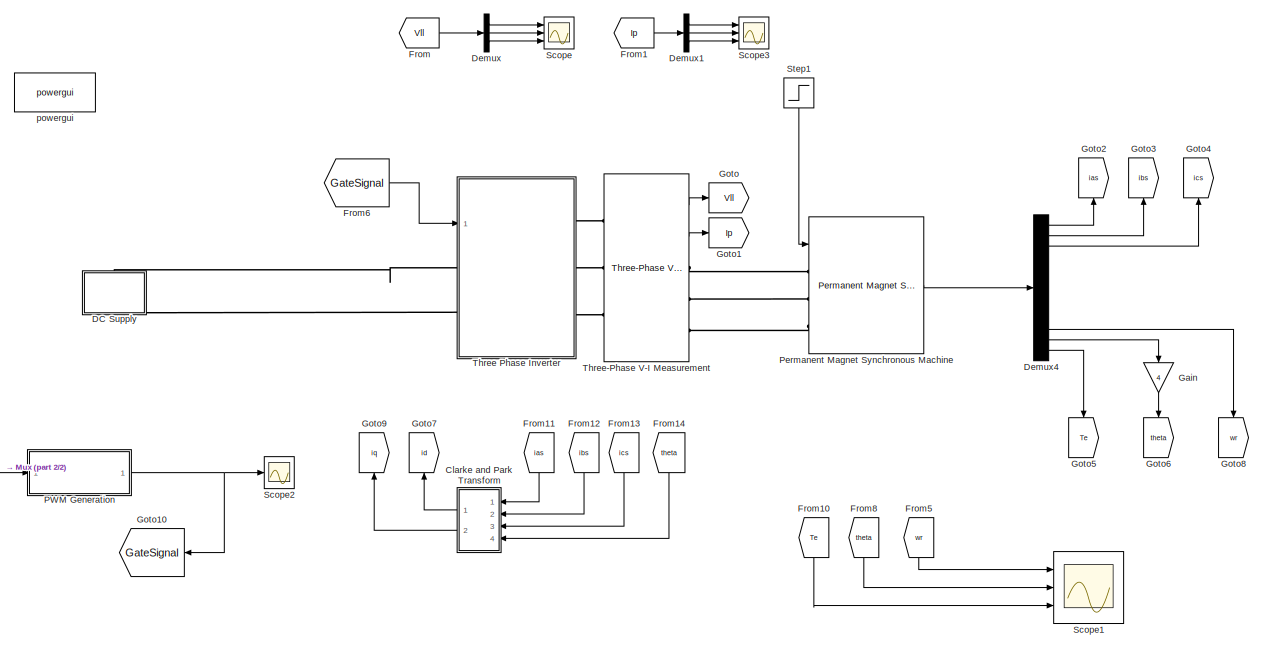
[diagram: root canvas - part 1/2, full width, top band]
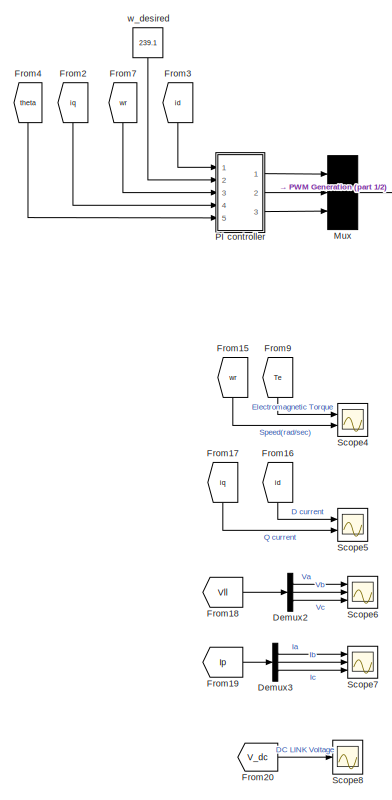
[diagram: root canvas - part 2/2, middle left region]
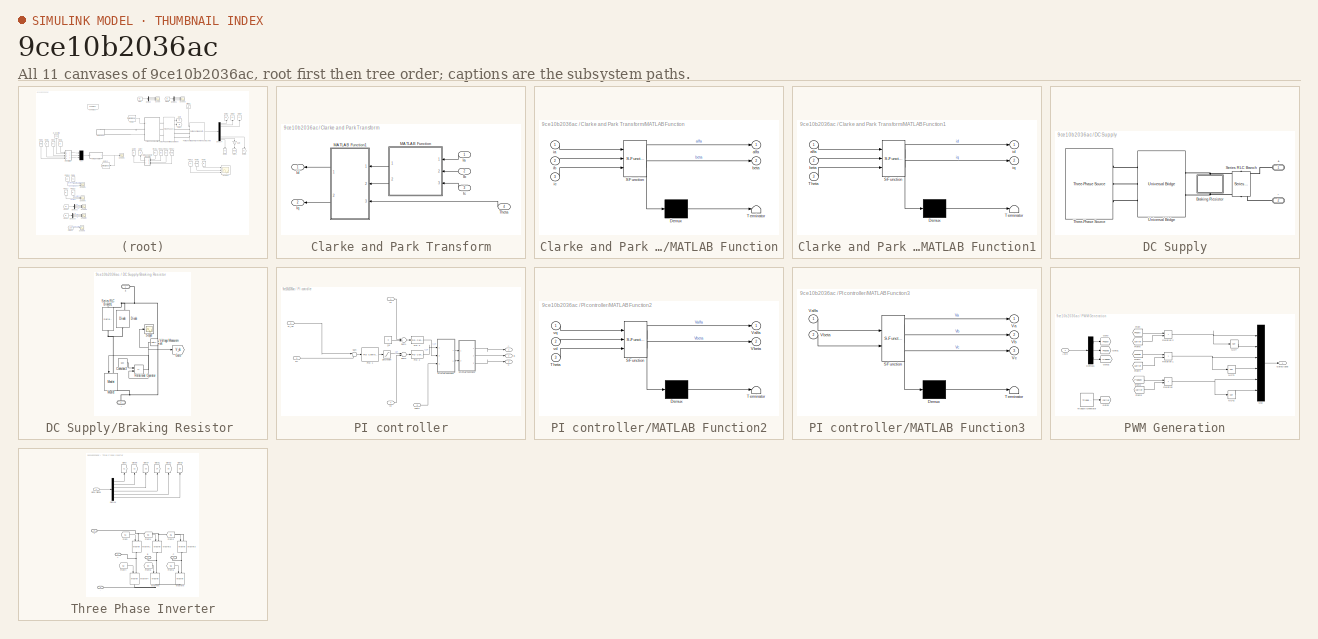
[diagram: thumbnail index - all 11 canvases of the model, root first then tree order]
MODEL slx_9ce10b2036ac
KIND model
CONFIG AbsTol = auto
CONFIG EnableMultiTasking = off
CONFIG FixedStep = auto
CONFIG MaxStep = auto
CONFIG MinStep = auto
CONFIG RelTol = 1e-3
CONFIG SampleTimeConstraint = Unconstrained
CONFIG Solver = VariableStepDiscrete
CONFIG SolverName = VariableStepDiscrete
CONFIG StartTime = 0.0
CONFIG StopTime = 10.0
BLOCK [SubSystem] Clarke and Park Transform
  Ports = [4, 2]
  RequestExecContextInheritance = off
BLOCK [Inport] Clarke and Park Transform/Ia
  IconDisplay = Port number
BLOCK [Inport] Clarke and Park Transform/Ib
  IconDisplay = Port number
  Port = 2
BLOCK [Inport] Clarke and Park Transform/Ic
  IconDisplay = Port number
  Port = 3
BLOCK [Outport] Clarke and Park Transform/Id
  IconDisplay = Port number
BLOCK [Outport] Clarke and Park Transform/Iq
  IconDisplay = Port number
  Port = 2
BLOCK [SubSystem] Clarke and Park Transform/MATLAB Function
  ErrorFcn = Stateflow.Translate.translate
  PermitHierarchicalResolution = ExplicitOnly
  Ports = [3, 2]
  RequestExecContextInheritance = off
  SFBlockType = MATLAB Function
  TreatAsAtomicUnit = on
BLOCK [Demux] Clarke and Park Transform/MATLAB Function/ Demux 
  Outputs = 1
  Ports = [1, 1]
BLOCK [S-Function] Clarke and Park Transform/MATLAB Function/ SFunction 
  EnableBusSupport = on
  FunctionName = sf_sfun
  PortCounts = [3 3]
  Ports = [3, 3]
  SFcnIsStateOwnerBlock = off
  SFunctionDeploymentMode = off
  Tag = Stateflow S-Function FinalFinal 2
BLOCK [Terminator] Clarke and Park Transform/MATLAB Function/ Terminator 
BLOCK [Outport] Clarke and Park Transform/MATLAB Function/alfa
  IconDisplay = Port number
BLOCK [Outport] Clarke and Park Transform/MATLAB Function/beta
  IconDisplay = Port number
  Port = 2
BLOCK [Inport] Clarke and Park Transform/MATLAB Function/ia
  IconDisplay = Port number
BLOCK [Inport] Clarke and Park Transform/MATLAB Function/ib
  IconDisplay = Port number
  Port = 2
BLOCK [Inport] Clarke and Park Transform/MATLAB Function/ic
  IconDisplay = Port number
  Port = 3
BLOCK [SubSystem] Clarke and Park Transform/MATLAB Function1
  ErrorFcn = Stateflow.Translate.translate
  PermitHierarchicalResolution = ExplicitOnly
  Ports = [3, 2]
  RequestExecContextInheritance = off
  SFBlockType = MATLAB Function
  TreatAsAtomicUnit = on
BLOCK [Demux] Clarke and Park Transform/MATLAB Function1/ Demux 
  Outputs = 1
  Ports = [1, 1]
BLOCK [S-Function] Clarke and Park Transform/MATLAB Function1/ SFunction 
  EnableBusSupport = on
  FunctionName = sf_sfun
  PortCounts = [3 3]
  Ports = [3, 3]
  SFcnIsStateOwnerBlock = off
  SFunctionDeploymentMode = off
  Tag = Stateflow S-Function FinalFinal 1
BLOCK [Terminator] Clarke and Park Transform/MATLAB Function1/ Terminator 
BLOCK [Inport] Clarke and Park Transform/MATLAB Function1/Theta
  IconDisplay = Port number
  Port = 3
BLOCK [Inport] Clarke and Park Transform/MATLAB Function1/alfa
  IconDisplay = Port number
BLOCK [Inport] Clarke and Park Transform/MATLAB Function1/beta
  IconDisplay = Port number
  Port = 2
BLOCK [Outport] Clarke and Park Transform/MATLAB Function1/id
  IconDisplay = Port number
BLOCK [Outport] Clarke and Park Transform/MATLAB Function1/iq
  IconDisplay = Port number
  Port = 2
BLOCK [Inport] Clarke and Park Transform/Theta
  IconDisplay = Port number
  Port = 4
BLOCK [SubSystem] DC Supply
  Ports = [0, 0, 0, 0, 0, 1, 1]
  RequestExecContextInheritance = off
BLOCK [PMIOPort] DC Supply/+
  Side = Right
BLOCK [PMIOPort] DC Supply/-
  Port = 2
  Side = Left
BLOCK [SubSystem] DC Supply/Braking Resistor 
  Commented = on
  Ports = [0, 0, 0, 0, 0, 1, 1]
  RequestExecContextInheritance = off
BLOCK [PMIOPort] DC Supply/Braking Resistor /+
  Side = Left
BLOCK [PMIOPort] DC Supply/Braking Resistor /-
  Port = 2
  Side = Right
BLOCK [Constant] DC Supply/Braking Resistor /Constant3
  Value = 600
BLOCK [Reference] DC Supply/Braking Resistor /Diode  REF=powerlib/Power
Electronics/Diode
  Ports = [0, 1, 0, 0, 0, 1, 1]
  SourceBlock = powerlib/Power\nElectronics/Diode
  SourceProductBaseCode = PS
  SourceProductName = Simscape Power Systems
  SourceType = Diode
BLOCK [Goto] DC Supply/Braking Resistor /Goto
  GotoTag = V_dc
  TagVisibility = global
BLOCK [Reference] DC Supply/Braking Resistor /Mosfet  REF=powerlib/Power
Electronics/Mosfet
  Ports = [1, 0, 0, 0, 0, 1, 1]
  SourceBlock = powerlib/Power\nElectronics/Mosfet
  SourceProductBaseCode = PS
  SourceProductName = Simscape Electrical
  SourceType = Mosfet
BLOCK [RelationalOperator] DC Supply/Braking Resistor /Relational Operator
  InputSameDT = off
  Operator = <=
  OutDataTypeStr = boolean
  Ports = [2, 1]
  RndMeth = Simplest
BLOCK [Scope] DC Supply/Braking Resistor /Scope
  Floating = off
  NumInputPorts = 1
  Ports = [1]
  ScopeSpecificationString = Simulink.scopes.TimeScopeBlockCfg('CurrentConfiguration', extmgr.ConfigurationSet(extmgr.Configuration('Core','General UI',true),extmgr.Configuration('Core','Source UI',true),extmgr.Configuration('Sources','WiredSimulink',true),extmgr.Configuration('Visuals','Time Domain',true),extmgr.Configuration('Tools','Plot Navigation',true),extmgr.Configuration('Tools','Measurements',true)),'Version','2018a'...<+1ch>
BLOCK [Reference] DC Supply/Braking Resistor /Series RLC Branch1  REF=powerlib/Elements/Series RLC Branch
  Ports = [0, 0, 0, 0, 0, 1, 1]
  SourceBlock = powerlib/Elements/Series RLC Branch
  SourceProductBaseCode = PS
  SourceProductName = Simscape Power Systems
  SourceType = Series RLC Branch
BLOCK [Reference] DC Supply/Braking Resistor /Voltage Measurement  REF=powerlib/Measurements/Voltage Measurement
  Ports = [0, 1, 0, 0, 0, 2]
  SourceBlock = powerlib/Measurements/Voltage Measurement
  SourceProductBaseCode = PS
  SourceProductName = Simscape Electrical
  SourceType = Voltage Measurement
  UserDataPersistent = on
BLOCK [Reference] DC Supply/Series RLC Branch  REF=powerlib/Elements/Series RLC Branch
  Ports = [0, 0, 0, 0, 0, 1, 1]
  SourceBlock = powerlib/Elements/Series RLC Branch
  SourceProductBaseCode = PS
  SourceProductName = Simscape Electrical
  SourceType = Series RLC Branch
BLOCK [Reference] DC Supply/Three-Phase Source   REF=powerlib/Electrical
Sources/Three-Phase Source
  Ports = [0, 0, 0, 0, 0, 0, 3]
  SourceBlock = powerlib/Electrical\nSources/Three-Phase Source
  SourceProductBaseCode = PS
  SourceProductName = Simscape Electrical
  SourceType = Three-Phase Source
BLOCK [Reference] DC Supply/Universal Bridge   REF=powerlib/Power
Electronics/Universal Bridge
  Ports = [0, 0, 0, 0, 0, 3, 2]
  SourceBlock = powerlib/Power\nElectronics/Universal Bridge
  SourceProductBaseCode = PS
  SourceProductName = Simscape Electrical
  SourceType = Universal Bridge
BLOCK [Demux] Demux
  DisplayOption = bar
  Outputs = 3
  Ports = [1, 3]
BLOCK [Demux] Demux1
  DisplayOption = bar
  Outputs = 3
  Ports = [1, 3]
BLOCK [Demux] Demux2
  DisplayOption = bar
  Outputs = 3
  Ports = [1, 3]
BLOCK [Demux] Demux3
  DisplayOption = bar
  Outputs = 3
  Ports = [1, 3]
BLOCK [Demux] Demux4
  DisplayOption = bar
  Outputs = 13
  Ports = [1, 13]
BLOCK [From] From
  GotoTag = Vll
BLOCK [From] From1
  GotoTag = Ip
BLOCK [From] From10
  GotoTag = Te
BLOCK [From] From11
  GotoTag = ias
BLOCK [From] From12
  GotoTag = ibs
BLOCK [From] From13
  GotoTag = ics
BLOCK [From] From14
  GotoTag = theta
BLOCK [From] From15
  GotoTag = wr
BLOCK [From] From16
  GotoTag = id
BLOCK [From] From17
  GotoTag = iq
BLOCK [From] From18
  GotoTag = Vll
BLOCK [From] From19
  GotoTag = Ip
BLOCK [From] From2
  GotoTag = iq
BLOCK [From] From20
  Commented = on
  GotoTag = V_dc
  TagVisibility = global
BLOCK [From] From3
  GotoTag = id
BLOCK [From] From4
  GotoTag = theta
BLOCK [From] From5
  GotoTag = wr
BLOCK [From] From6
  GotoTag = GateSignal
BLOCK [From] From7
  GotoTag = wr
BLOCK [From] From8
  GotoTag = theta
BLOCK [From] From9
  GotoTag = Te
BLOCK [Gain] Gain
  Gain = 4
  OutDataTypeStr = Inherit: Inherit via internal rule
  ParamDataTypeStr = Inherit: Inherit via internal rule
  SaturateOnIntegerOverflow = off
BLOCK [Goto] Goto
  GotoTag = Vll
BLOCK [Goto] Goto1
  GotoTag = Ip
BLOCK [Goto] Goto10
  GotoTag = GateSignal
BLOCK [Goto] Goto2
  GotoTag = ias
BLOCK [Goto] Goto3
  GotoTag = ibs
BLOCK [Goto] Goto4
  GotoTag = ics
BLOCK [Goto] Goto5
  GotoTag = Te
BLOCK [Goto] Goto6
  GotoTag = theta
BLOCK [Goto] Goto7
  GotoTag = id
BLOCK [Goto] Goto8
  GotoTag = wr
BLOCK [Goto] Goto9
  GotoTag = iq
BLOCK [Mux] Mux
  DisplayOption = bar
  Inputs = 3
  Ports = [3, 1]
BLOCK [SubSystem] PI controller
  Ports = [5, 3]
  RequestExecContextInheritance = off
BLOCK [Outport] PI controller/A
  IconDisplay = Port number
BLOCK [Outport] PI controller/B
  IconDisplay = Port number
  Port = 2
BLOCK [Outport] PI controller/C
  IconDisplay = Port number
  Port = 3
BLOCK [Inport] PI controller/Id
  IconDisplay = Port number
BLOCK [Inport] PI controller/Iq
  IconDisplay = Port number
  Port = 4
BLOCK [SubSystem] PI controller/MATLAB Function2
  ErrorFcn = Stateflow.Translate.translate
  PermitHierarchicalResolution = ExplicitOnly
  Ports = [3, 2]
  RequestExecContextInheritance = off
  SFBlockType = MATLAB Function
  TreatAsAtomicUnit = on
BLOCK [Demux] PI controller/MATLAB Function2/ Demux 
  Outputs = 1
  Ports = [1, 1]
BLOCK [S-Function] PI controller/MATLAB Function2/ SFunction 
  EnableBusSupport = on
  FunctionName = sf_sfun
  PortCounts = [3 3]
  Ports = [3, 3]
  SFcnIsStateOwnerBlock = off
  SFunctionDeploymentMode = off
  Tag = Stateflow S-Function FinalFinal 3
BLOCK [Terminator] PI controller/MATLAB Function2/ Terminator 
BLOCK [Inport] PI controller/MATLAB Function2/Theta
  IconDisplay = Port number
  Port = 3
BLOCK [Outport] PI controller/MATLAB Function2/Valfa
  IconDisplay = Port number
BLOCK [Outport] PI controller/MATLAB Function2/Vbeta
  IconDisplay = Port number
  Port = 2
BLOCK [Inport] PI controller/MATLAB Function2/vd
  IconDisplay = Port number
  Port = 2
BLOCK [Inport] PI controller/MATLAB Function2/vq
  IconDisplay = Port number
BLOCK [SubSystem] PI controller/MATLAB Function3
  ErrorFcn = Stateflow.Translate.translate
  PermitHierarchicalResolution = ExplicitOnly
  Ports = [2, 3]
  RequestExecContextInheritance = off
  SFBlockType = MATLAB Function
  TreatAsAtomicUnit = on
BLOCK [Demux] PI controller/MATLAB Function3/ Demux 
  Outputs = 1
  Ports = [1, 1]
BLOCK [S-Function] PI controller/MATLAB Function3/ SFunction 
  EnableBusSupport = on
  FunctionName = sf_sfun
  PortCounts = [2 4]
  Ports = [2, 4]
  SFcnIsStateOwnerBlock = off
  SFunctionDeploymentMode = off
  Tag = Stateflow S-Function FinalFinal 4
BLOCK [Terminator] PI controller/MATLAB Function3/ Terminator 
BLOCK [Outport] PI controller/MATLAB Function3/Va
  IconDisplay = Port number
BLOCK [Inport] PI controller/MATLAB Function3/Valfa
  IconDisplay = Port number
BLOCK [Outport] PI controller/MATLAB Function3/Vb
  IconDisplay = Port number
  Port = 2
BLOCK [Inport] PI controller/MATLAB Function3/Vbeta
  IconDisplay = Port number
  Port = 2
BLOCK [Outport] PI controller/MATLAB Function3/Vc
  IconDisplay = Port number
  Port = 3
BLOCK [Reference] PI controller/PID 1  REF=simulink/Continuous/PID Controller
  Ports = [1, 1]
  SourceBlock = simulink/Continuous/PID Controller
  SourceProductBaseCode = SL
  SourceProductName = Simulink
  SourceType = PID 1dof
BLOCK [Reference] PI controller/PID 2  REF=simulink/Continuous/PID Controller
  Ports = [1, 1]
  SourceBlock = simulink/Continuous/PID Controller
  SourceProductBaseCode = SL
  SourceProductName = Simulink
  SourceType = PID 1dof
BLOCK [Reference] PI controller/PID 3  REF=simulink/Continuous/PID Controller
  Ports = [1, 1]
  SourceBlock = simulink/Continuous/PID Controller
  SourceProductBaseCode = SL
  SourceProductName = Simulink
  SourceType = PID 1dof
BLOCK [Saturate] PI controller/Saturation
  InputPortMap = u0
  LowerLimit = -250
  Ports = [1, 1]
  UpperLimit = 250
BLOCK [Sum] PI controller/Sum
  IconShape = round
  InputSameDT = off
  Inputs = |+-
  OutDataTypeStr = Inherit: Inherit via internal rule
  Ports = [2, 1]
  SaturateOnIntegerOverflow = off
BLOCK [Sum] PI controller/Sum1
  InputSameDT = off
  Inputs = -+|
  OutDataTypeStr = Inherit: Inherit via internal rule
  Ports = [2, 1]
  SaturateOnIntegerOverflow = off
BLOCK [Sum] PI controller/Sum2
  InputSameDT = off
  Inputs = |+-
  OutDataTypeStr = Inherit: Inherit via internal rule
  Ports = [2, 1]
  SaturateOnIntegerOverflow = off
BLOCK [Inport] PI controller/Theta
  IconDisplay = Port number
  Port = 5
BLOCK [Constant] PI controller/i_d*
  Value = 0
BLOCK [Inport] PI controller/w_ref
  IconDisplay = Port number
  Port = 2
BLOCK [Inport] PI controller/wr
  IconDisplay = Port number
  Port = 3
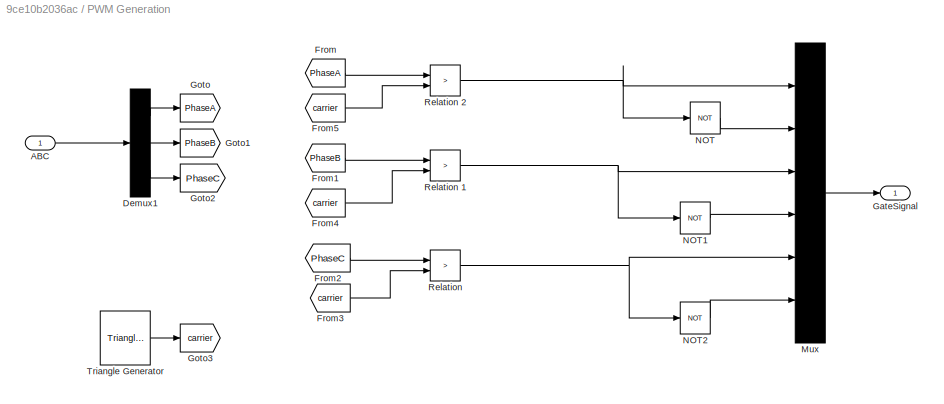
BLOCK [SubSystem] PWM Generation
  Ports = [1, 1]
  RequestExecContextInheritance = off
BLOCK [Inport] PWM Generation/ABC
  IconDisplay = Port number
BLOCK [Demux] PWM Generation/Demux1
  DisplayOption = bar
  Outputs = 3
  Ports = [1, 3]
BLOCK [From] PWM Generation/From
  GotoTag = PhaseA
BLOCK [From] PWM Generation/From1
  GotoTag = PhaseB
BLOCK [From] PWM Generation/From2
  GotoTag = PhaseC
BLOCK [From] PWM Generation/From3
  GotoTag = carrier
BLOCK [From] PWM Generation/From4
  GotoTag = carrier
BLOCK [From] PWM Generation/From5
  GotoTag = carrier
BLOCK [Outport] PWM Generation/GateSignal 
  IconDisplay = Port number
BLOCK [Goto] PWM Generation/Goto
  GotoTag = PhaseA
BLOCK [Goto] PWM Generation/Goto1
  GotoTag = PhaseB
BLOCK [Goto] PWM Generation/Goto2
  GotoTag = PhaseC
BLOCK [Goto] PWM Generation/Goto3
  GotoTag = carrier
BLOCK [Mux] PWM Generation/Mux
  DisplayOption = bar
  Inputs = 6
  Ports = [6, 1]
BLOCK [Logic] PWM Generation/NOT
  AllPortsSameDT = off
  IconShape = distinctive
  Operator = NOT
  OutDataTypeStr = boolean
  Ports = [1, 1]
BLOCK [Logic] PWM Generation/NOT1
  AllPortsSameDT = off
  IconShape = distinctive
  Operator = NOT
  OutDataTypeStr = boolean
  Ports = [1, 1]
BLOCK [Logic] PWM Generation/NOT2
  AllPortsSameDT = off
  IconShape = distinctive
  Operator = NOT
  OutDataTypeStr = boolean
  Ports = [1, 1]
BLOCK [RelationalOperator] PWM Generation/Relation 
  InputSameDT = off
  Operator = >
  OutDataTypeStr = boolean
  Ports = [2, 1]
  RndMeth = Simplest
BLOCK [RelationalOperator] PWM Generation/Relation 1
  InputSameDT = off
  Operator = >
  OutDataTypeStr = boolean
  Ports = [2, 1]
  RndMeth = Simplest
BLOCK [RelationalOperator] PWM Generation/Relation 2
  InputSameDT = off
  Operator = >
  OutDataTypeStr = boolean
  Ports = [2, 1]
  RndMeth = Simplest
BLOCK [Reference] PWM Generation/Triangle Generator  REF=powerlib_meascontrol/Pulse & Signal
Generators/Triangle
Generator
  Ports = [0, 1]
  SourceBlock = powerlib_meascontrol/Pulse & Signal\nGenerators/Triangle\nGenerator
  SourceProductBaseCode = PS
  SourceProductName = Simscape Power Systems
  SourceType = Triangle Generator
BLOCK [Reference] Permanent Magnet Synchronous Machine  REF=powerlib/Machines/Permanent Magnet
Synchronous Machine
  Ports = [1, 1, 0, 0, 0, 3]
  SourceBlock = powerlib/Machines/Permanent Magnet\nSynchronous Machine
  SourceProductBaseCode = PS
  SourceProductName = Simscape Electrical
  SourceType = Permanent Magnet Synchronous Machine
BLOCK [Scope] Scope
  Floating = off
  NumInputPorts = 3
  Ports = [3]
  ScopeSpecificationString = Simulink.scopes.TimeScopeBlockCfg('CurrentConfiguration', extmgr.ConfigurationSet(extmgr.Configuration('Core','General UI',true),extmgr.Configuration('Core','Source UI',true),extmgr.Configuration('Sources','WiredSimulink',true,'DataLoggingVariableName','ScopeData3'),extmgr.Configuration('Visuals','Time Domain',true),extmgr.Configuration('Tools','Plot Navigation',true),extmgr.Configuration('Tools',...<+40ch>
BLOCK [Scope] Scope1
  Floating = off
  NumInputPorts = 3
  Ports = [3]
  ScopeSpecificationString = Simulink.scopes.TimeScopeBlockCfg('CurrentConfiguration', extmgr.ConfigurationSet(extmgr.Configuration('Core','General UI',true),extmgr.Configuration('Core','Source UI',true),extmgr.Configuration('Sources','WiredSimulink',true,'DataLoggingVariableName','ScopeData1'),extmgr.Configuration('Visuals','Time Domain',true,'SerializedDisplays',{struct('MinYLimReal','107.11559','MaxYLimReal','283.65382','Y...<+2784ch>
BLOCK [Scope] Scope2
  Floating = off
  NumInputPorts = 1
  Ports = [1]
  ScopeSpecificationString = Simulink.scopes.TimeScopeBlockCfg('CurrentConfiguration', extmgr.ConfigurationSet(extmgr.Configuration('Core','General UI',true),extmgr.Configuration('Core','Source UI',true),extmgr.Configuration('Sources','WiredSimulink',true,'DataLoggingVariableName','ScopeData2'),extmgr.Configuration('Visuals','Time Domain',true,'SerializedDisplays',{struct('MinYLimReal','-0.05025','MaxYLimReal','1.00636','YLab...<+1708ch>
BLOCK [Scope] Scope3
  Floating = off
  NumInputPorts = 3
  Ports = [3]
  ScopeSpecificationString = Simulink.scopes.TimeScopeBlockCfg('CurrentConfiguration', extmgr.ConfigurationSet(extmgr.Configuration('Core','General UI',true),extmgr.Configuration('Core','Source UI',true),extmgr.Configuration('Sources','WiredSimulink',true,'DataLoggingVariableName','ScopeData6'),extmgr.Configuration('Visuals','Time Domain',true),extmgr.Configuration('Tools','Plot Navigation',true),extmgr.Configuration('Tools',...<+40ch>
BLOCK [Scope] Scope4
  Floating = off
  NumInputPorts = 2
  Ports = [2]
  ScopeSpecificationString = Simulink.scopes.TimeScopeBlockCfg('CurrentConfiguration', extmgr.ConfigurationSet(extmgr.Configuration('Core','General UI',true,'FigureColor',[0.831372549019608 0.815686274509804 0.784313725490196]),extmgr.Configuration('Core','Source UI',true),extmgr.Configuration('Sources','WiredSimulink',true,'DataLoggingVariableName','ScopeData4'),extmgr.Configuration('Visuals','Time Domain',true,'SerializedDi...<+3140ch>
BLOCK [Scope] Scope5
  Floating = off
  NumInputPorts = 2
  Ports = [2]
  ScopeSpecificationString = Simulink.scopes.TimeScopeBlockCfg('CurrentConfiguration', extmgr.ConfigurationSet(extmgr.Configuration('Core','General UI',true,'FigureColor',[0.831372549019608 0.815686274509804 0.784313725490196]),extmgr.Configuration('Core','Source UI',true),extmgr.Configuration('Sources','WiredSimulink',true,'DataLoggingVariableName','ScopeData5'),extmgr.Configuration('Visuals','Time Domain',true,'SerializedDi...<+2506ch>
BLOCK [Scope] Scope6
  Floating = off
  NumInputPorts = 3
  Ports = [3]
  ScopeSpecificationString = Simulink.scopes.TimeScopeBlockCfg('CurrentConfiguration', extmgr.ConfigurationSet(extmgr.Configuration('Core','General UI',true,'FigureColor',[0.831372549019608 0.815686274509804 0.784313725490196]),extmgr.Configuration('Core','Source UI',true),extmgr.Configuration('Sources','WiredSimulink',true,'DataLoggingVariableName','ScopeData7'),extmgr.Configuration('Visuals','Time Domain',true,'SerializedDi...<+3972ch>
BLOCK [Scope] Scope7
  Floating = off
  NumInputPorts = 3
  Ports = [3]
  ScopeSpecificationString = Simulink.scopes.TimeScopeBlockCfg('CurrentConfiguration', extmgr.ConfigurationSet(extmgr.Configuration('Core','General UI',true,'FigureColor',[0.831372549019608 0.815686274509804 0.784313725490196]),extmgr.Configuration('Core','Source UI',true),extmgr.Configuration('Sources','WiredSimulink',true,'DataLoggingVariableName','ScopeData8'),extmgr.Configuration('Visuals','Time Domain',true,'SerializedDi...<+3852ch>
BLOCK [Scope] Scope8
  Commented = on
  Floating = off
  NumInputPorts = 1
  Ports = [1]
  ScopeSpecificationString = Simulink.scopes.TimeScopeBlockCfg('CurrentConfiguration', extmgr.ConfigurationSet(extmgr.Configuration('Core','General UI',true,'FigureColor',[0.831372549019608 0.815686274509804 0.784313725490196]),extmgr.Configuration('Core','Source UI',true),extmgr.Configuration('Sources','WiredSimulink',true,'DataLoggingVariableName','ScopeData9'),extmgr.Configuration('Visuals','Time Domain',true,'SerializedDi...<+2406ch>
BLOCK [Step] Step1
  After = 60
  SampleTime = 1e-6
  Time = .1
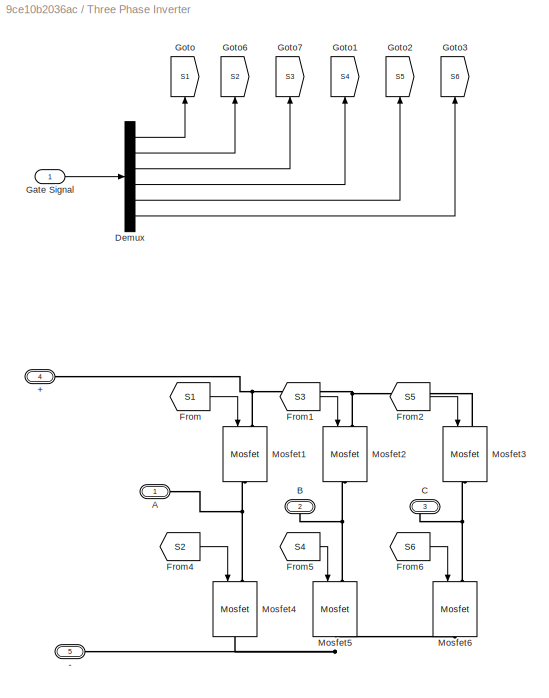
BLOCK [SubSystem] Three Phase Inverter
  Ports = [1, 0, 0, 0, 0, 2, 3]
  RequestExecContextInheritance = off
BLOCK [PMIOPort] Three Phase Inverter/+
  Port = 4
  Side = Left
BLOCK [PMIOPort] Three Phase Inverter/-
  Port = 5
  Side = Left
BLOCK [PMIOPort] Three Phase Inverter/A
  Side = Right
BLOCK [PMIOPort] Three Phase Inverter/B
  Port = 2
  Side = Right
BLOCK [PMIOPort] Three Phase Inverter/C
  Port = 3
  Side = Right
BLOCK [Demux] Three Phase Inverter/Demux
  DisplayOption = bar
  Outputs = 6
  Ports = [1, 6]
BLOCK [From] Three Phase Inverter/From
  GotoTag = S1
BLOCK [From] Three Phase Inverter/From1
  GotoTag = S3
BLOCK [From] Three Phase Inverter/From2
  GotoTag = S5
BLOCK [From] Three Phase Inverter/From4
  GotoTag = S2
BLOCK [From] Three Phase Inverter/From5
  GotoTag = S4
BLOCK [From] Three Phase Inverter/From6
  GotoTag = S6
BLOCK [Inport] Three Phase Inverter/Gate Signal
  IconDisplay = Port number
BLOCK [Goto] Three Phase Inverter/Goto
  GotoTag = S1
BLOCK [Goto] Three Phase Inverter/Goto1
  GotoTag = S4
BLOCK [Goto] Three Phase Inverter/Goto2
  GotoTag = S5
BLOCK [Goto] Three Phase Inverter/Goto3
  GotoTag = S6
BLOCK [Goto] Three Phase Inverter/Goto6
  GotoTag = S2
BLOCK [Goto] Three Phase Inverter/Goto7
  GotoTag = S3
BLOCK [Reference] Three Phase Inverter/Mosfet1  REF=powerlib/Power
Electronics/Mosfet
  Ports = [1, 0, 0, 0, 0, 1, 1]
  SourceBlock = powerlib/Power\nElectronics/Mosfet
  SourceProductBaseCode = PS
  SourceProductName = Simscape Power Systems
  SourceType = Mosfet
BLOCK [Reference] Three Phase Inverter/Mosfet2  REF=powerlib/Power
Electronics/Mosfet
  Ports = [1, 0, 0, 0, 0, 1, 1]
  SourceBlock = powerlib/Power\nElectronics/Mosfet
  SourceProductBaseCode = PS
  SourceProductName = Simscape Power Systems
  SourceType = Mosfet
BLOCK [Reference] Three Phase Inverter/Mosfet3  REF=powerlib/Power
Electronics/Mosfet
  Ports = [1, 0, 0, 0, 0, 1, 1]
  SourceBlock = powerlib/Power\nElectronics/Mosfet
  SourceProductBaseCode = PS
  SourceProductName = Simscape Power Systems
  SourceType = Mosfet
BLOCK [Reference] Three Phase Inverter/Mosfet4  REF=powerlib/Power
Electronics/Mosfet
  Ports = [1, 0, 0, 0, 0, 1, 1]
  SourceBlock = powerlib/Power\nElectronics/Mosfet
  SourceProductBaseCode = PS
  SourceProductName = Simscape Power Systems
  SourceType = Mosfet
BLOCK [Reference] Three Phase Inverter/Mosfet5  REF=powerlib/Power
Electronics/Mosfet
  Ports = [1, 0, 0, 0, 0, 1, 1]
  SourceBlock = powerlib/Power\nElectronics/Mosfet
  SourceProductBaseCode = PS
  SourceProductName = Simscape Power Systems
  SourceType = Mosfet
BLOCK [Reference] Three Phase Inverter/Mosfet6  REF=powerlib/Power
Electronics/Mosfet
  Ports = [1, 0, 0, 0, 0, 1, 1]
  SourceBlock = powerlib/Power\nElectronics/Mosfet
  SourceProductBaseCode = PS
  SourceProductName = Simscape Power Systems
  SourceType = Mosfet
BLOCK [Reference] Three-Phase V-I Measurement  REF=powerlib/Measurements/Three-Phase
V-I Measurement
  Ports = [0, 2, 0, 0, 0, 3, 3]
  SourceBlock = powerlib/Measurements/Three-Phase\nV-I Measurement
  SourceProductBaseCode = PS
  SourceProductName = Simscape Electrical
  SourceType = Three-Phase VI Measurement
BLOCK [Reference] powergui  REF=powerlib/powergui
  Ports = []
  Priority = 1
  SourceBlock = powerlib/powergui
  SourceProductBaseCode = PS
  SourceProductName = Simscape Power Systems
  SourceType = PSB option menu block
BLOCK [Constant] w_desired
  Value = 239.1
LINE Clarke and Park Transform/Ia:1 -> Clarke and Park Transform/MATLAB Function:1
LINE Clarke and Park Transform/Ib:1 -> Clarke and Park Transform/MATLAB Function:2
LINE Clarke and Park Transform/Ic:1 -> Clarke and Park Transform/MATLAB Function:3
LINE Clarke and Park Transform/MATLAB Function1:1 -> Clarke and Park Transform/Id:1
LINE Clarke and Park Transform/MATLAB Function1:2 -> Clarke and Park Transform/Iq:1
LINE Clarke and Park Transform/MATLAB Function:1 -> Clarke and Park Transform/MATLAB Function1:1
LINE Clarke and Park Transform/MATLAB Function:2 -> Clarke and Park Transform/MATLAB Function1:2
LINE Clarke and Park Transform/Theta:1 -> Clarke and Park Transform/MATLAB Function1:3
LINE Clarke and Park Transform:1 -> Goto7:1
LINE Clarke and Park Transform:2 -> Goto9:1
LINE DC Supply/Braking Resistor /Constant3:1 -> DC Supply/Braking Resistor /Relational Operator:1
LINE DC Supply/Braking Resistor /Relational Operator:1 -> DC Supply/Braking Resistor /Mosfet:1
NET DC Supply/Braking Resistor /Voltage Measurement:1 -> DC Supply/Braking Resistor /Goto:1, DC Supply/Braking Resistor /Relational Operator:2, DC Supply/Braking Resistor /Scope:1
LINE Demux1:1 -> Scope3:1
LINE Demux1:2 -> Scope3:2
LINE Demux1:3 -> Scope3:3
LINE Demux2:1 -> Scope6:1
LINE Demux2:2 -> Scope6:2
LINE Demux2:3 -> Scope6:3
LINE Demux3:1 -> Scope7:1
LINE Demux3:2 -> Scope7:2
LINE Demux3:3 -> Scope7:3
LINE Demux4:1 -> Goto2:1
LINE Demux4:11 -> Goto8:1
LINE Demux4:12 -> Gain:1
LINE Demux4:13 -> Goto5:1
LINE Demux4:2 -> Goto3:1
LINE Demux4:3 -> Goto4:1
LINE Demux:1 -> Scope:1
LINE Demux:2 -> Scope:2
LINE Demux:3 -> Scope:3
LINE From10:1 -> Scope1:3
LINE From11:1 -> Clarke and Park Transform:1
LINE From12:1 -> Clarke and Park Transform:2
LINE From13:1 -> Clarke and Park Transform:3
LINE From14:1 -> Clarke and Park Transform:4
LINE From15:1 -> Scope4:2
LINE From16:1 -> Scope5:1
LINE From17:1 -> Scope5:2
LINE From18:1 -> Demux2:1
LINE From19:1 -> Demux3:1
LINE From1:1 -> Demux1:1
LINE From20:1 -> Scope8:1
LINE From2:1 -> PI controller:4
LINE From3:1 -> PI controller:1
LINE From4:1 -> PI controller:5
LINE From5:1 -> Scope1:1
LINE From6:1 -> Three Phase Inverter:1
LINE From7:1 -> PI controller:3
LINE From8:1 -> Scope1:2
LINE From9:1 -> Scope4:1
LINE From:1 -> Demux:1
LINE Gain:1 -> Goto6:1
LINE Mux:1 -> PWM Generation:1
LINE PI controller/Id:1 -> PI controller/Sum1:1
LINE PI controller/Iq:1 -> PI controller/Sum2:2
LINE PI controller/MATLAB Function2:1 -> PI controller/MATLAB Function3:1
LINE PI controller/MATLAB Function2:2 -> PI controller/MATLAB Function3:2
LINE PI controller/MATLAB Function3:1 -> PI controller/A:1
LINE PI controller/MATLAB Function3:2 -> PI controller/B:1
LINE PI controller/MATLAB Function3:3 -> PI controller/C:1
LINE PI controller/PID 1:1 -> PI controller/Saturation:1
LINE PI controller/PID 2:1 -> PI controller/MATLAB Function2:1
LINE PI controller/PID 3:1 -> PI controller/MATLAB Function2:2
LINE PI controller/Saturation:1 -> PI controller/Sum2:1
LINE PI controller/Sum1:1 -> PI controller/PID 3:1
LINE PI controller/Sum2:1 -> PI controller/PID 2:1
LINE PI controller/Sum:1 -> PI controller/PID 1:1
LINE PI controller/Theta:1 -> PI controller/MATLAB Function2:3
LINE PI controller/i_d*:1 -> PI controller/Sum1:2
LINE PI controller/w_ref:1 -> PI controller/Sum:1
LINE PI controller/wr:1 -> PI controller/Sum:2
LINE PI controller:1 -> Mux:1
LINE PI controller:2 -> Mux:2
LINE PI controller:3 -> Mux:3
LINE PWM Generation/ABC:1 -> PWM Generation/Demux1:1
LINE PWM Generation/Demux1:1 -> PWM Generation/Goto:1
LINE PWM Generation/Demux1:2 -> PWM Generation/Goto1:1
LINE PWM Generation/Demux1:3 -> PWM Generation/Goto2:1
LINE PWM Generation/From1:1 -> PWM Generation/Relation 1:1
LINE PWM Generation/From2:1 -> PWM Generation/Relation :1
LINE PWM Generation/From3:1 -> PWM Generation/Relation :2
LINE PWM Generation/From4:1 -> PWM Generation/Relation 1:2
LINE PWM Generation/From5:1 -> PWM Generation/Relation 2:2
LINE PWM Generation/From:1 -> PWM Generation/Relation 2:1
LINE PWM Generation/Mux:1 -> PWM Generation/GateSignal :1
LINE PWM Generation/NOT1:1 -> PWM Generation/Mux:4
LINE PWM Generation/NOT2:1 -> PWM Generation/Mux:6
LINE PWM Generation/NOT:1 -> PWM Generation/Mux:2
NET PWM Generation/Relation 1:1 -> PWM Generation/Mux:3, PWM Generation/NOT1:1
NET PWM Generation/Relation 2:1 -> PWM Generation/Mux:1, PWM Generation/NOT:1
NET PWM Generation/Relation :1 -> PWM Generation/Mux:5, PWM Generation/NOT2:1
LINE PWM Generation/Triangle Generator:1 -> PWM Generation/Goto3:1
NET PWM Generation:1 -> Goto10:1, Scope2:1
LINE Permanent Magnet Synchronous Machine:1 -> Demux4:1
LINE Step1:1 -> Permanent Magnet Synchronous Machine:1
LINE Three Phase Inverter/Demux:1 -> Three Phase Inverter/Goto:1
LINE Three Phase Inverter/Demux:2 -> Three Phase Inverter/Goto6:1
LINE Three Phase Inverter/Demux:3 -> Three Phase Inverter/Goto7:1
LINE Three Phase Inverter/Demux:4 -> Three Phase Inverter/Goto1:1
LINE Three Phase Inverter/Demux:5 -> Three Phase Inverter/Goto2:1
LINE Three Phase Inverter/Demux:6 -> Three Phase Inverter/Goto3:1
LINE Three Phase Inverter/From1:1 -> Three Phase Inverter/Mosfet2:1
LINE Three Phase Inverter/From2:1 -> Three Phase Inverter/Mosfet3:1
LINE Three Phase Inverter/From4:1 -> Three Phase Inverter/Mosfet4:1
LINE Three Phase Inverter/From5:1 -> Three Phase Inverter/Mosfet5:1
LINE Three Phase Inverter/From6:1 -> Three Phase Inverter/Mosfet6:1
LINE Three Phase Inverter/From:1 -> Three Phase Inverter/Mosfet1:1
LINE Three Phase Inverter/Gate Signal:1 -> Three Phase Inverter/Demux:1
LINE Three-Phase V-I Measurement:1 -> Goto:1
LINE Three-Phase V-I Measurement:2 -> Goto1:1
LINE w_desired:1 -> PI controller:2
PNET net1: DC Supply/+:RConn1 -- DC Supply/Braking Resistor :LConn1 -- DC Supply/Series RLC Branch:LConn1 -- DC Supply/Universal Bridge :RConn1
PNET net2: DC Supply/-:RConn1 -- DC Supply/Braking Resistor :RConn1 -- DC Supply/Series RLC Branch:RConn1 -- DC Supply/Universal Bridge :RConn2
PNET net3: DC Supply/Braking Resistor /+:RConn1 -- DC Supply/Braking Resistor /Diode:RConn1 -- DC Supply/Braking Resistor /Series RLC Branch1:LConn1 -- DC Supply/Braking Resistor /Voltage Measurement:LConn1
PNET net4: DC Supply/Braking Resistor /-:RConn1 -- DC Supply/Braking Resistor /Mosfet:RConn1 -- DC Supply/Braking Resistor /Voltage Measurement:LConn2
PNET net5: DC Supply/Braking Resistor /Diode:LConn1 -- DC Supply/Braking Resistor /Mosfet:LConn1 -- DC Supply/Braking Resistor /Series RLC Branch1:RConn1
PLINE DC Supply/Three-Phase Source :RConn1 -- DC Supply/Universal Bridge :LConn1
PLINE DC Supply/Three-Phase Source :RConn2 -- DC Supply/Universal Bridge :LConn2
PLINE DC Supply/Three-Phase Source :RConn3 -- DC Supply/Universal Bridge :LConn3
PLINE DC Supply:LConn1 -- Three Phase Inverter:LConn2
PLINE DC Supply:RConn1 -- Three Phase Inverter:LConn1
PLINE Permanent Magnet Synchronous Machine:LConn1 -- Three-Phase V-I Measurement:RConn1
PLINE Permanent Magnet Synchronous Machine:LConn2 -- Three-Phase V-I Measurement:RConn2
PLINE Permanent Magnet Synchronous Machine:LConn3 -- Three-Phase V-I Measurement:RConn3
PNET net6: Three Phase Inverter/+:RConn1 -- Three Phase Inverter/Mosfet1:LConn1 -- Three Phase Inverter/Mosfet2:LConn1 -- Three Phase Inverter/Mosfet3:LConn1
PNET net7: Three Phase Inverter/-:RConn1 -- Three Phase Inverter/Mosfet4:RConn1 -- Three Phase Inverter/Mosfet5:RConn1 -- Three Phase Inverter/Mosfet6:RConn1
PNET net8: Three Phase Inverter/A:RConn1 -- Three Phase Inverter/Mosfet1:RConn1 -- Three Phase Inverter/Mosfet4:LConn1
PNET net9: Three Phase Inverter/B:RConn1 -- Three Phase Inverter/Mosfet2:RConn1 -- Three Phase Inverter/Mosfet5:LConn1
PNET net10: Three Phase Inverter/C:RConn1 -- Three Phase Inverter/Mosfet3:RConn1 -- Three Phase Inverter/Mosfet6:LConn1
PLINE Three Phase Inverter:RConn1 -- Three-Phase V-I Measurement:LConn1
PLINE Three Phase Inverter:RConn2 -- Three-Phase V-I Measurement:LConn2
PLINE Three Phase Inverter:RConn3 -- Three-Phase V-I Measurement:LConn3
note: NET lines group one-source signal fan-out (src -> all destinations, sorted); 1:1 wires keep LINE; PNET lines group multi-terminal physical nets as a canonical sorted terminal list (undirected conserving connections); 2-terminal nets keep the pairwise PLINE form
CHART Clarke and Park Transform/MATLAB Function1 states=1 transitions=1
  STATE_LABEL 'eML_blk_kernel()'
  STATE_LABEL 'SCRIPT:\nfunction [id,iq]= dqTransform(alfa,beta,Theta)\nid= cos(Theta)*alfa+ sin(Theta)*beta;\niq=-sin(Theta)*alfa+ cos(Theta)*beta;\n'
CHART Clarke and Park Transform/MATLAB Function states=1 transitions=1
  STATE_LABEL 'eML_blk_kernel()'
  STATE_LABEL 'SCRIPT:\nfunction [alfa,beta]= alfaBetaConversion(ia,ib,ic)\nalfa= (2/3)* (ia -ib/2 - ic/2);\nbeta =(2/3)*( sqrt(3)*ib/2 - sqrt(3)*ic/2);\n\n\n\n'
CHART PI controller/MATLAB Function2 states=1 transitions=1
  STATE_LABEL 'eML_blk_kernel()'
  STATE_LABEL 'SCRIPT:\nfunction [Valfa,Vbeta]= fcn(vq,vd,Theta)\n\nValfa=cos(Theta)*vd -sin(Theta)*vq;\nVbeta=sin(Theta)*vd+ cos(Theta)*vq;'
CHART PI controller/MATLAB Function3 states=1 transitions=1
  STATE_LABEL 'eML_blk_kernel()'
  STATE_LABEL 'SCRIPT:\nfunction [Va,Vb,Vc]= fcn(Valfa,Vbeta)\nVa=Valfa;\nVb=( -Valfa+ sqrt(3)*Vbeta)/2;\nVc=( -Valfa- sqrt(3)*Vbeta)/2;\n\n\n'
